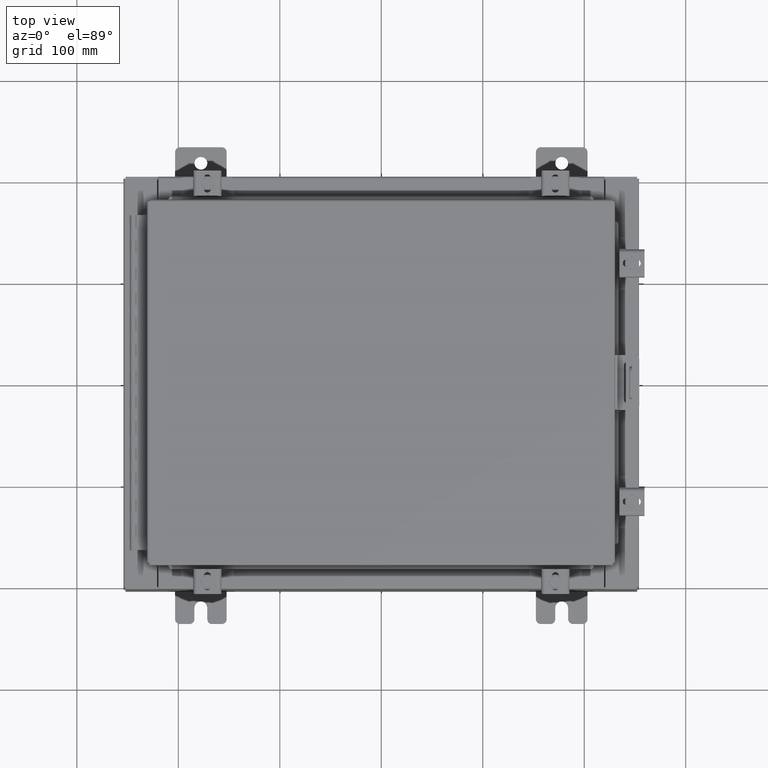
[diagram: clean part render]
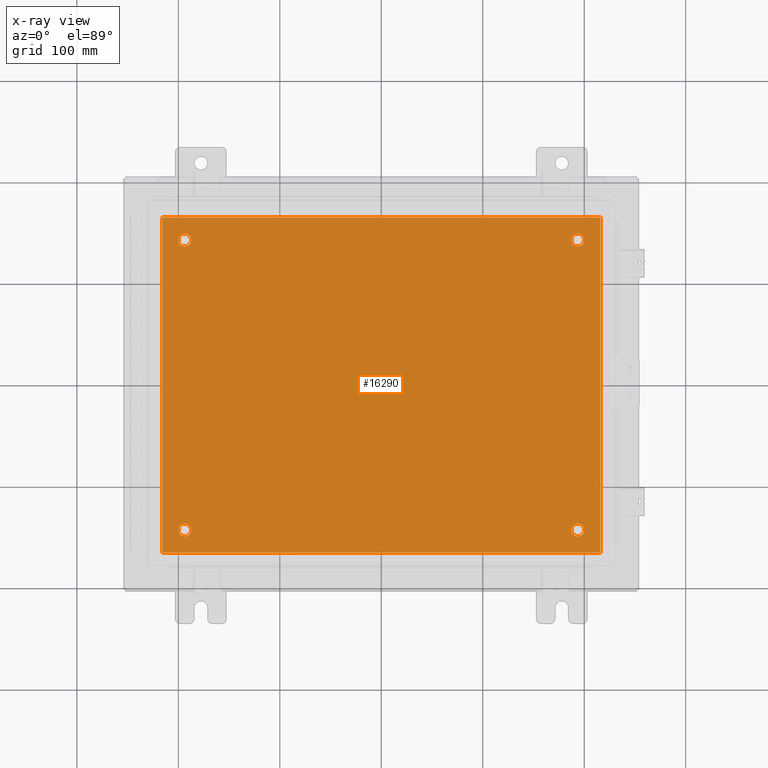
[diagram: x-ray — body ghosted, one internal face saturated and labeled with its STEP entity id]
A machine part, top view, then the same camera in x-ray: the body is ghosted and one INTERNAL B-rep face — a face not visible from any outside direction — is saturated and labeled: STEP entity #16290.
In plain terms, the highlighted planar face has unit normal (0, 0, -1).
Its self-contained STEP definition (entity closure, byte-faithful):
#69 = ORIENTED_EDGE ( 'NONE', *, *, #2421, .T. ) ;
#501 = CARTESIAN_POINT ( 'NONE',  ( -7.625000000000000000, 5.625000000000000000, -0.1039999999999999800 ) ) ;
#740 = DIRECTION ( 'NONE',  ( 0.0000000000000000000, 1.000000000000000000, 0.0000000000000000000 ) ) ;
#877 = AXIS2_PLACEMENT_3D ( 'NONE', #19929, #7845, #13906 ) ;
#882 = EDGE_CURVE ( 'NONE', #7824, #3872, #20813, .T. ) ;
#1057 = VECTOR ( 'NONE', #740, 39.37007874015748100 ) ;
#1338 = ORIENTED_EDGE ( 'NONE', *, *, #15267, .T. ) ;
#1593 = PLANE ( 'NONE',  #4433 ) ;
#1687 = DIRECTION ( 'NONE',  ( -1.000000000000000000, 0.0000000000000000000, -0.0000000000000000000 ) ) ;
#1885 = EDGE_LOOP ( 'NONE', ( #4705, #13791 ) ) ;
#2089 = EDGE_LOOP ( 'NONE', ( #24502, #21858 ) ) ;
#2421 = EDGE_CURVE ( 'NONE', #3681, #25000, #23500, .T. ) ;
#2513 = DIRECTION ( 'NONE',  ( -1.000000000000000000, 0.0000000000000000000, 0.0000000000000000000 ) ) ;
#2604 = EDGE_CURVE ( 'NONE', #17449, #14630, #8341, .T. ) ;
#2770 = DIRECTION ( 'NONE',  ( -0.0000000000000000000, -1.000000000000000000, -0.0000000000000000000 ) ) ;
#3681 = VERTEX_POINT ( 'NONE', #21938 ) ;
#3872 = VERTEX_POINT ( 'NONE', #16418 ) ;
#4024 = EDGE_CURVE ( 'NONE', #3872, #19545, #6044, .T. ) ;
#4133 = CARTESIAN_POINT ( 'NONE',  ( 7.625000000000000000, -5.625000000000000000, -0.1039999999999999800 ) ) ;
#4430 = CARTESIAN_POINT ( 'NONE',  ( -8.499999999999996400, 6.500000000000000000, -0.1039999999999999800 ) ) ;
#4433 = AXIS2_PLACEMENT_3D ( 'NONE', #23858, #13783, #1687 ) ;
#4557 = VERTEX_POINT ( 'NONE', #24086 ) ;
#4687 = DIRECTION ( 'NONE',  ( -0.0000000000000000000, -0.0000000000000000000, 1.000000000000000000 ) ) ;
#4705 = ORIENTED_EDGE ( 'NONE', *, *, #15853, .T. ) ;
#4719 = FACE_BOUND ( 'NONE', #2089, .T. ) ;
#5005 = CIRCLE ( 'NONE', #5272, 0.2499999999999998100 ) ;
#5272 = AXIS2_PLACEMENT_3D ( 'NONE', #20918, #8807, #22960 ) ;
#5792 = DIRECTION ( 'NONE',  ( -1.000000000000000000, -0.0000000000000000000, -0.0000000000000000000 ) ) ;
#5935 = DIRECTION ( 'NONE',  ( 1.000000000000000000, 0.0000000000000000000, 0.0000000000000000000 ) ) ;
#6030 = VERTEX_POINT ( 'NONE', #24834 ) ;
#6044 = LINE ( 'NONE', #18914, #10127 ) ;
#6077 = EDGE_CURVE ( 'NONE', #20982, #7824, #23158, .T. ) ;
#6370 = CARTESIAN_POINT ( 'NONE',  ( 8.500000000000003600, 6.500000000000000000, -0.1039999999999999800 ) ) ;
#6395 = ORIENTED_EDGE ( 'NONE', *, *, #882, .F. ) ;
#6657 = DIRECTION ( 'NONE',  ( -0.0000000000000000000, -0.0000000000000000000, 1.000000000000000000 ) ) ;
#6984 = CARTESIAN_POINT ( 'NONE',  ( 8.500000000000003600, -6.500000000000000000, -0.1039999999999999800 ) ) ;
#7199 = EDGE_LOOP ( 'NONE', ( #21068, #14995, #15094, #6395 ) ) ;
#7612 = EDGE_CURVE ( 'NONE', #19545, #20982, #9769, .T. ) ;
#7824 = VERTEX_POINT ( 'NONE', #6370 ) ;
#7845 = DIRECTION ( 'NONE',  ( -0.0000000000000000000, -0.0000000000000000000, 1.000000000000000000 ) ) ;
#8172 = DIRECTION ( 'NONE',  ( -0.0000000000000000000, -0.0000000000000000000, 1.000000000000000000 ) ) ;
#8341 = CIRCLE ( 'NONE', #18444, 0.2499999999999987000 ) ;
#8807 = DIRECTION ( 'NONE',  ( -0.0000000000000000000, -0.0000000000000000000, 1.000000000000000000 ) ) ;
#8861 = CARTESIAN_POINT ( 'NONE',  ( 7.625000000000000000, 5.625000000000000000, -0.1039999999999999800 ) ) ;
#9103 = AXIS2_PLACEMENT_3D ( 'NONE', #16722, #4687, #18788 ) ;
#9206 = CARTESIAN_POINT ( 'NONE',  ( 7.625000000000000000, 5.625000000000000000, -0.1039999999999999800 ) ) ;
#9402 = FACE_OUTER_BOUND ( 'NONE', #7199, .T. ) ;
#9520 = EDGE_CURVE ( 'NONE', #4557, #6030, #12420, .T. ) ;
#9667 = CARTESIAN_POINT ( 'NONE',  ( 7.375000000000000900, -5.625000000000000000, -0.1039999999999999800 ) ) ;
#9769 = LINE ( 'NONE', #20080, #15145 ) ;
#9778 = CARTESIAN_POINT ( 'NONE',  ( -7.375000000000000000, 5.625000000000000000, -0.1039999999999999800 ) ) ;
#10053 = VECTOR ( 'NONE', #5792, 39.37007874015748100 ) ;
#10085 = CIRCLE ( 'NONE', #9103, 0.2499999999999987000 ) ;
#10095 = DIRECTION ( 'NONE',  ( -1.000000000000000000, 0.0000000000000000000, 0.0000000000000000000 ) ) ;
#10127 = VECTOR ( 'NONE', #2770, 39.37007874015748100 ) ;
#10896 = DIRECTION ( 'NONE',  ( -1.000000000000000000, 0.0000000000000000000, 0.0000000000000000000 ) ) ;
#11240 = DIRECTION ( 'NONE',  ( -1.000000000000000000, 0.0000000000000000000, 0.0000000000000000000 ) ) ;
#12070 = CARTESIAN_POINT ( 'NONE',  ( -7.874999999999999100, -5.625000000000000000, -0.1039999999999999800 ) ) ;
#12165 = CIRCLE ( 'NONE', #15097, 0.2499999999999987000 ) ;
#12420 = CIRCLE ( 'NONE', #22139, 0.2499999999999987000 ) ;
#13177 = CARTESIAN_POINT ( 'NONE',  ( -7.874999999999999100, 5.625000000000000000, -0.1039999999999999800 ) ) ;
#13492 = EDGE_CURVE ( 'NONE', #15070, #24302, #23188, .T. ) ;
#13783 = DIRECTION ( 'NONE',  ( 0.0000000000000000000, 0.0000000000000000000, -1.000000000000000000 ) ) ;
#13791 = ORIENTED_EDGE ( 'NONE', *, *, #13492, .T. ) ;
#13906 = DIRECTION ( 'NONE',  ( -1.000000000000000000, 0.0000000000000000000, 0.0000000000000000000 ) ) ;
#14563 = DIRECTION ( 'NONE',  ( -0.0000000000000000000, -0.0000000000000000000, 1.000000000000000000 ) ) ;
#14630 = VERTEX_POINT ( 'NONE', #9667 ) ;
#14771 = FACE_BOUND ( 'NONE', #21392, .T. ) ;
#14995 = ORIENTED_EDGE ( 'NONE', *, *, #7612, .F. ) ;
#15070 = VERTEX_POINT ( 'NONE', #13177 ) ;
#15094 = ORIENTED_EDGE ( 'NONE', *, *, #4024, .F. ) ;
#15097 = AXIS2_PLACEMENT_3D ( 'NONE', #9206, #23359, #11240 ) ;
#15145 = VECTOR ( 'NONE', #5935, 39.37007874015748100 ) ;
#15267 = EDGE_CURVE ( 'NONE', #14630, #17449, #10085, .T. ) ;
#15853 = EDGE_CURVE ( 'NONE', #24302, #15070, #23660, .T. ) ;
#16233 = AXIS2_PLACEMENT_3D ( 'NONE', #501, #14563, #2513 ) ;
#16290 = ADVANCED_FACE ( 'NONE', ( #14771, #23527, #4719, #20179, #9402 ), #1593, .T. ) ;
#16384 = EDGE_LOOP ( 'NONE', ( #22087, #1338 ) ) ;
#16418 = CARTESIAN_POINT ( 'NONE',  ( -8.499999999999996400, 6.500000000000000000, -0.1039999999999999800 ) ) ;
#16634 = EDGE_CURVE ( 'NONE', #25000, #3681, #5005, .T. ) ;
#16722 = CARTESIAN_POINT ( 'NONE',  ( 7.625000000000000000, -5.625000000000000000, -0.1039999999999999800 ) ) ;
#16868 = CARTESIAN_POINT ( 'NONE',  ( 8.500000000000003600, -6.500000000000000000, -0.1039999999999999800 ) ) ;
#17449 = VERTEX_POINT ( 'NONE', #18270 ) ;
#18051 = AXIS2_PLACEMENT_3D ( 'NONE', #18777, #6657, #20798 ) ;
#18270 = CARTESIAN_POINT ( 'NONE',  ( 7.874999999999998200, -5.625000000000000000, -0.1039999999999999800 ) ) ;
#18444 = AXIS2_PLACEMENT_3D ( 'NONE', #4133, #8172, #10095 ) ;
#18777 = CARTESIAN_POINT ( 'NONE',  ( -7.625000000000000000, 5.625000000000000000, -0.1039999999999999800 ) ) ;
#18788 = DIRECTION ( 'NONE',  ( -1.000000000000000000, 0.0000000000000000000, 0.0000000000000000000 ) ) ;
#18914 = CARTESIAN_POINT ( 'NONE',  ( -8.499999999999996400, -6.500000000000000000, -0.1039999999999999800 ) ) ;
#19286 = EDGE_CURVE ( 'NONE', #6030, #4557, #12165, .T. ) ;
#19545 = VERTEX_POINT ( 'NONE', #24220 ) ;
#19929 = CARTESIAN_POINT ( 'NONE',  ( -7.625000000000000000, -5.625000000000000000, -0.1039999999999999800 ) ) ;
#20080 = CARTESIAN_POINT ( 'NONE',  ( -8.499999999999996400, -6.500000000000000000, -0.1039999999999999800 ) ) ;
#20179 = FACE_BOUND ( 'NONE', #1885, .T. ) ;
#20798 = DIRECTION ( 'NONE',  ( -1.000000000000000000, 0.0000000000000000000, 0.0000000000000000000 ) ) ;
#20813 = LINE ( 'NONE', #4430, #10053 ) ;
#20918 = CARTESIAN_POINT ( 'NONE',  ( -7.625000000000000000, -5.625000000000000000, -0.1039999999999999800 ) ) ;
#20982 = VERTEX_POINT ( 'NONE', #6984 ) ;
#21068 = ORIENTED_EDGE ( 'NONE', *, *, #6077, .F. ) ;
#21392 = EDGE_LOOP ( 'NONE', ( #69, #25947 ) ) ;
#21858 = ORIENTED_EDGE ( 'NONE', *, *, #19286, .T. ) ;
#21938 = CARTESIAN_POINT ( 'NONE',  ( -7.375000000000000000, -5.625000000000000000, -0.1039999999999999800 ) ) ;
#22087 = ORIENTED_EDGE ( 'NONE', *, *, #2604, .T. ) ;
#22139 = AXIS2_PLACEMENT_3D ( 'NONE', #8861, #23012, #10896 ) ;
#22960 = DIRECTION ( 'NONE',  ( -1.000000000000000000, 0.0000000000000000000, 0.0000000000000000000 ) ) ;
#23012 = DIRECTION ( 'NONE',  ( -0.0000000000000000000, -0.0000000000000000000, 1.000000000000000000 ) ) ;
#23158 = LINE ( 'NONE', #16868, #1057 ) ;
#23188 = CIRCLE ( 'NONE', #18051, 0.2499999999999998100 ) ;
#23359 = DIRECTION ( 'NONE',  ( -0.0000000000000000000, -0.0000000000000000000, 1.000000000000000000 ) ) ;
#23500 = CIRCLE ( 'NONE', #877, 0.2499999999999998100 ) ;
#23527 = FACE_BOUND ( 'NONE', #16384, .T. ) ;
#23660 = CIRCLE ( 'NONE', #16233, 0.2499999999999998100 ) ;
#23858 = CARTESIAN_POINT ( 'NONE',  ( 0.0000000000000000000, 0.0000000000000000000, -0.1039999999999999800 ) ) ;
#24086 = CARTESIAN_POINT ( 'NONE',  ( 7.874999999999998200, 5.625000000000000000, -0.1039999999999999800 ) ) ;
#24220 = CARTESIAN_POINT ( 'NONE',  ( -8.499999999999996400, -6.500000000000000000, -0.1039999999999999800 ) ) ;
#24302 = VERTEX_POINT ( 'NONE', #9778 ) ;
#24502 = ORIENTED_EDGE ( 'NONE', *, *, #9520, .T. ) ;
#24834 = CARTESIAN_POINT ( 'NONE',  ( 7.375000000000000900, 5.625000000000000000, -0.1039999999999999800 ) ) ;
#25000 = VERTEX_POINT ( 'NONE', #12070 ) ;
#25947 = ORIENTED_EDGE ( 'NONE', *, *, #16634, .T. ) ;